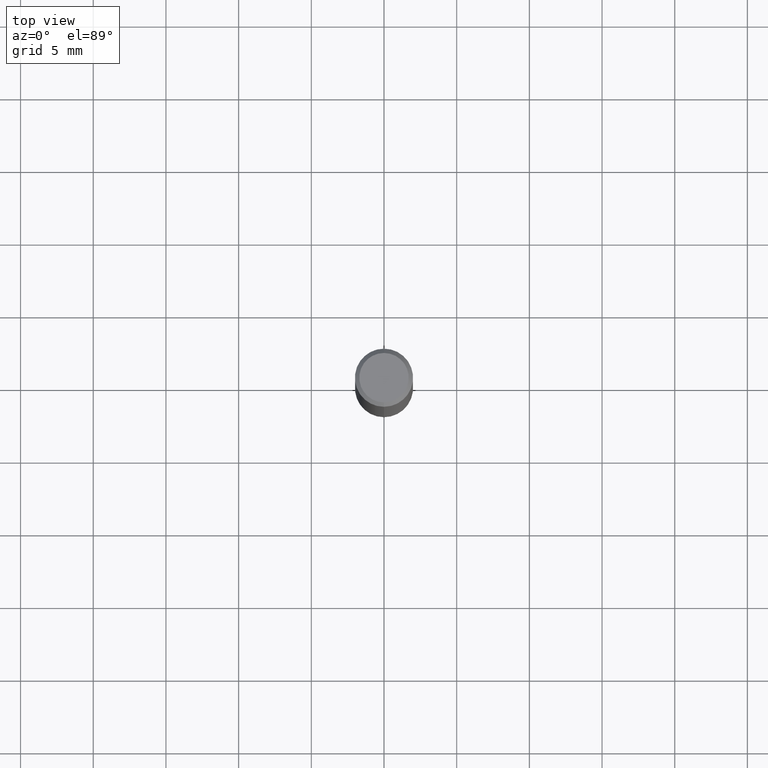
[diagram: clean part render]
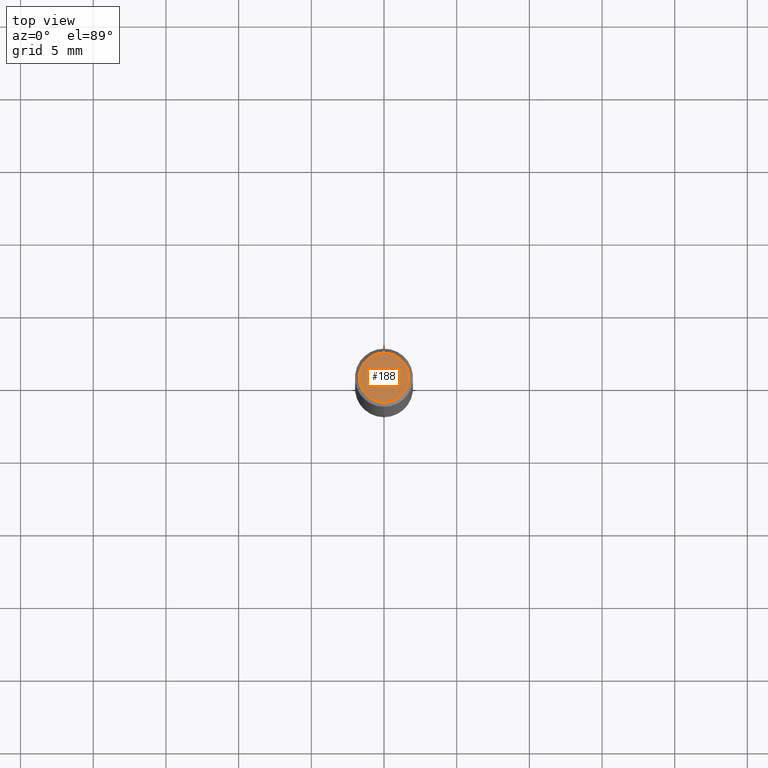
[diagram: same view with one face highlighted and labeled with its STEP entity id]
A machine part, top view. The second image highlights one B-rep face of the part: STEP entity #188.
In plain terms, the highlighted planar face has unit normal (-0, 0, 1).
Its self-contained STEP definition (entity closure, byte-faithful):
#100=EDGE_CURVE('',#120,#182,#253,.T.);
#120=VERTEX_POINT('',#275);
#160=EDGE_CURVE('',#182,#120,#321,.T.);
#182=VERTEX_POINT('',#346);
#188=ADVANCED_FACE('',(#352),#353,.T.);
#253=CIRCLE('',#417,1.7);
#275=CARTESIAN_POINT('',(2.08183080149804E-016,-1.7,0.0));
#321=CIRCLE('',#500,1.7);
#346=CARTESIAN_POINT('',(0.0,1.7,0.0));
#352=FACE_OUTER_BOUND('',#538,.T.);
#353=PLANE('',#539);
#417=AXIS2_PLACEMENT_3D('',#606,#607,#608);
#500=AXIS2_PLACEMENT_3D('',#689,#690,#691);
#538=EDGE_LOOP('',(#733,#734));
#539=AXIS2_PLACEMENT_3D('',#735,#736,#737);
#606=CARTESIAN_POINT('',(0.0,0.0,0.0));
#607=DIRECTION('',(0.0,0.0,-1.0));
#608=DIRECTION('',(0.0,1.0,0.0));
#689=CARTESIAN_POINT('',(0.0,0.0,0.0));
#690=DIRECTION('',(0.0,0.0,-1.0));
#691=DIRECTION('',(0.0,1.0,0.0));
#733=ORIENTED_EDGE('',*,*,#160,.F.);
#734=ORIENTED_EDGE('',*,*,#100,.F.);
#735=CARTESIAN_POINT('',(0.0,0.85,0.0));
#736=DIRECTION('',(-0.0,0.0,1.0));
#737=DIRECTION('',(0.0,-1.0,0.0));